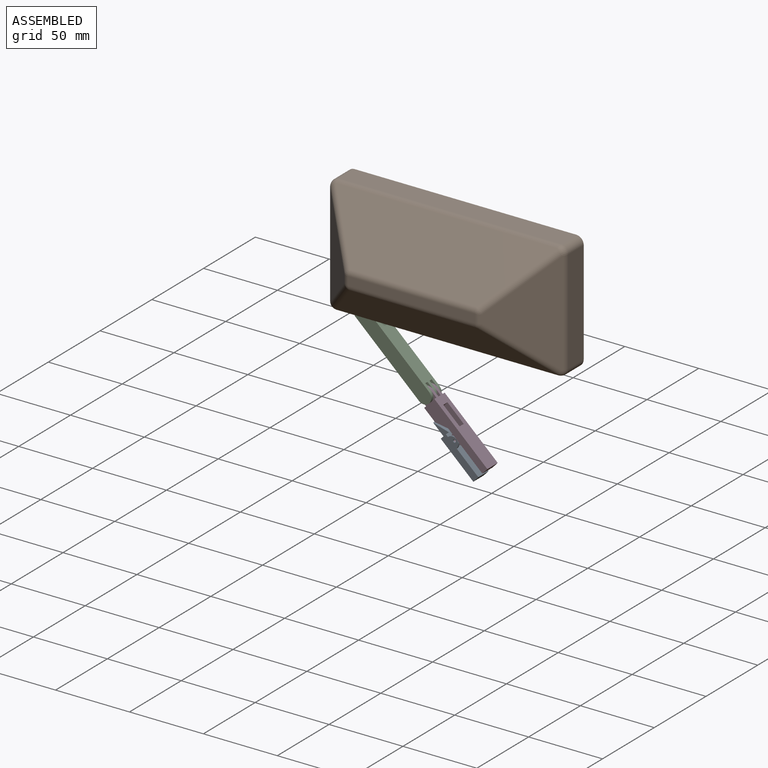
[diagram: assembled view]
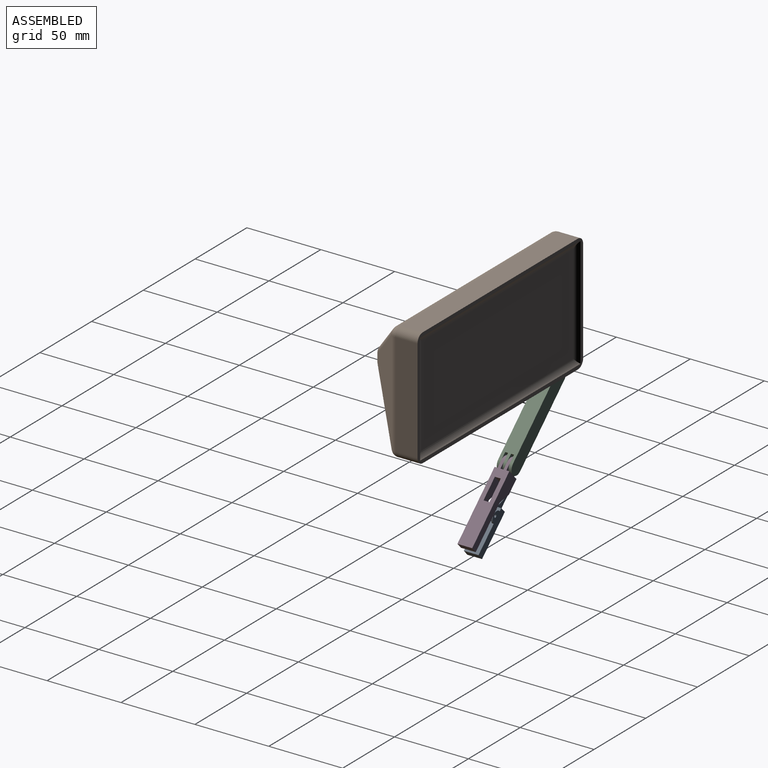
[diagram: assembled view, second angle]
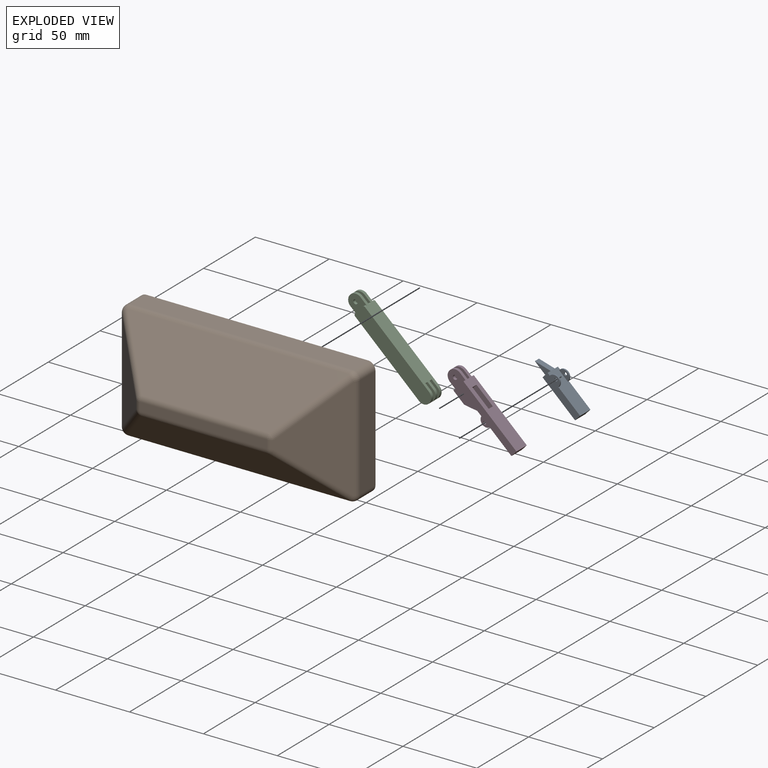
[diagram: exploded view]
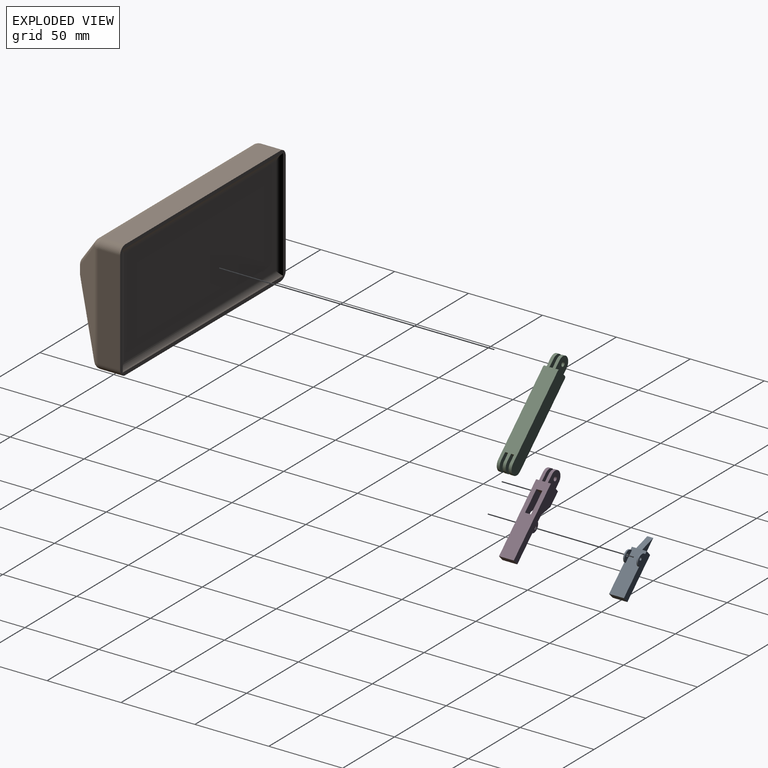
[diagram: exploded view, second angle]
ASSEMBLY  parts=4 mates=3
PART A: 16 faces, bbox 10x40x9 mm
  f0: plane 40x10mm, normal (0,0,-1), area 340mm2, adj f1,f2,f4,f5,f12,f13,f14,f15
  f1: plane 10x5mm, normal (0,0.45,0.89), area 44.7mm2, adj f0,f3,f12,f14
  f2: plane 30x9mm, normal (1,0,0), area 172mm2, adj f0,f3,f5,f9,f10,f15
  f3: plane 30x10mm, normal (0,0,1), area 284mm2, adj f1,f2,f4,f5,f6,f8,f9,f11
  f4: plane 30x9mm, normal (-1,0,0), area 172mm2, adj f0,f3,f5,f6,f7,f13
  f5: plane 10x5mm, normal (0,-1,0), area 50mm2, adj f0,f2,f3,f4
  f6: cylinder r=4mm len=8mm, axis (-1,0,0), area 12.6mm2, adj f3,f4,f8
  f7: cylinder r=1mm len=2mm, axis (-1,0,0), area 6.3mm2, adj f4,f8
  f8: plane 8x4mm, normal (1,0,0), area 22mm2, adj f3,f6,f7
  f9: cylinder r=4mm len=8mm, axis (1,0,0), area 12.6mm2, adj f2,f3,f11
  f10: cylinder r=1mm len=2mm, axis (1,0,0), area 6.3mm2, adj f2,f11
  f11: plane 8x4mm, normal (-1,0,0), area 22mm2, adj f3,f9,f10
  f12: plane 10x5mm, normal (-1,0,0), area 25mm2, adj f0,f1,f13
  f13: plane 5x3mm, normal (0,1,0), area 15mm2, adj f0,f3,f4,f12
  f14: plane 10x5mm, normal (1,0,0), area 25mm2, adj f0,f1,f15
  f15: plane 5x3mm, normal (0,1,0), area 15mm2, adj f0,f2,f3,f14
PART B: 59 faces, bbox 160x52x80 mm
  f0: plane 10x6mm, normal (0,-1,0), area 15.4mm2, adj f1,f6,f44,f53,f56
  f1: plane 146x10mm, normal (0,0,-1), area 1400mm2, adj f0,f2,f42,f43,f44,f45,f46,f47
  f2: plane 10x6mm, normal (0,1,0), area 15.4mm2, adj f1,f6,f44,f47,f58
  f3: plane 70x14.93mm, normal (1,0,0), area 1045mm2, adj f8,f14,f15,f38
  f4: plane 150x14.93mm, normal (0,0,1), area 2239.3mm2, adj f8,f15,f16,f41
  f5: plane 70x14.93mm, normal (-1,0,0), area 1045mm2, adj f8,f16,f17,f37
  f6: plane 150x14.93mm, normal (0,0,-1), area 779.3mm2, adj f0,f2,f8,f14,f17,f34,f42,f43
  f7: plane 85.86x5.86mm, normal (0,-1,0), area 502.9mm2, adj f25,f26,f30,f31
  f8: plane 160x80mm, normal (0,1,0), area 1153.5mm2, adj f3,f4,f5,f6,f14,f15,f16,f17
  f9: plane 70x32.07mm, normal (0.71,-0.71,0), area 1720.3mm2, adj f22,f26,f27,f38
  f10: plane 150x32.07mm, normal (0,-0.71,-0.71), area 5348.7mm2, adj f27,f31,f33,f34
  f11: plane 150x32.07mm, normal (0,-0.71,0.71), area 5348.7mm2, adj f22,f24,f25,f41
  f12: plane 70x32.07mm, normal (-0.71,-0.71,0), area 1720.3mm2, adj f24,f30,f33,f37
  f13: plane 147x67mm, normal (0,1,0), area 9849mm2, adj f18,f19,f20,f21
  f14: cylinder r=5mm len=14.93mm, axis (0,-1,0), area 117.3mm2, adj f3,f6,f8,f36
  f15: cylinder r=5mm len=14.93mm, axis (0,1,0), area 117.3mm2, adj f3,f4,f8,f40
  f16: cylinder r=5mm len=14.93mm, axis (0,-1,0), area 117.3mm2, adj f4,f5,f8,f39
  f17: cylinder r=5mm len=14.93mm, axis (0,1,0), area 117.3mm2, adj f5,f6,f8,f35
  f18: cylinder r=5mm len=155mm, axis (1,0,0), area 701.6mm2, adj f8,f13,f19,f20
  f19: cylinder r=5mm len=75mm, axis (0,0,1), area 330.6mm2, adj f8,f13,f18,f21
  f20: cylinder r=5mm len=75mm, axis (0,0,1), area 330.6mm2, adj f8,f13,f18,f21
  f21: cylinder r=5mm len=155mm, axis (1,0,0), area 701.6mm2, adj f8,f13,f19,f20
  f22: cylinder r=5mm len=35.61mm, axis (0.58,0.58,0.58), area 290.9mm2, adj f9,f11,f23,f40
  f23: sphere r=5mm, area 8.5mm2, adj f22,f25,f26
  f24: cylinder r=5mm len=35.61mm, axis (0.58,-0.58,-0.58), area 290.9mm2, adj f11,f12,f28,f39
  f25: cylinder r=5mm len=85.86mm, axis (-1,0,0), area 337.2mm2, adj f7,f11,f23,f28
  f26: cylinder r=5mm len=5.86mm, axis (0,0,1), area 23mm2, adj f7,f9,f23,f29
  f27: cylinder r=5mm len=35.61mm, axis (0.58,0.58,-0.58), area 290.9mm2, adj f9,f10,f29,f36
  f28: sphere r=5mm, area 8.5mm2, adj f24,f25,f30
  f29: sphere r=5mm, area 8.5mm2, adj f26,f27,f31
  f30: cylinder r=5mm len=5.86mm, axis (0,0,1), area 23mm2, adj f7,f12,f28,f32
  f31: cylinder r=5mm len=85.86mm, axis (-1,0,0), area 337.2mm2, adj f7,f10,f29,f32
  f32: sphere r=5mm, area 8.5mm2, adj f30,f31,f33
  f33: cylinder r=5mm len=35.61mm, axis (0.58,-0.58,0.58), area 290.9mm2, adj f10,f12,f32,f35
  f34: cylinder r=5mm len=150mm, axis (1,0,0), area 589mm2, adj f6,f10,f35,f36
  f35: sphere r=5mm, area 30.8mm2, adj f17,f33,f34,f37
  f36: sphere r=5mm, area 30.8mm2, adj f14,f27,f34,f38
  f37: cylinder r=5mm len=70mm, axis (0,0,-1), area 274.9mm2, adj f5,f12,f35,f39
  f38: cylinder r=5mm len=70mm, axis (0,0,1), area 274.9mm2, adj f3,f9,f36,f40
  f39: sphere r=5mm, area 30.8mm2, adj f16,f24,f37,f41
  f40: sphere r=5mm, area 30.8mm2, adj f15,f22,f38,f41
  f41: cylinder r=5mm len=150mm, axis (-1,0,0), area 589mm2, adj f4,f11,f39,f40
  f42: plane 10x10mm, normal (-1,0,0), area 100mm2, adj f1,f6,f43,f45
  f43: plane 140x10mm, normal (0,1,0), area 1355.4mm2, adj f1,f6,f42,f46,f58
  f44: plane 10x10mm, normal (1,0,0), area 100mm2, adj f0,f1,f2,f6
  f45: plane 140x10mm, normal (0,-1,0), area 1355.4mm2, adj f1,f6,f42,f54,f56
  f46: plane 5x2mm, normal (1,0,0), area 10mm2, adj f1,f43,f48,f58
  f47: plane 5x2mm, normal (-1,0,0), area 10mm2, adj f1,f2,f48,f58
  f48: plane 10x10mm, normal (0,1,0), area 89.3mm2, adj f1,f46,f47,f58
  f49: plane 10x10mm, normal (0,-1,0), area 89.3mm2, adj f1,f50,f52,f57
  f50: plane 5x2mm, normal (-1,0,0), area 10mm2, adj f1,f49,f51,f57
  f51: plane 10x10mm, normal (0,1,0), area 89.3mm2, adj f1,f50,f52,f57
  f52: plane 5x2mm, normal (1,0,0), area 10mm2, adj f1,f49,f51,f57
  f53: plane 5x2mm, normal (-1,0,0), area 10mm2, adj f0,f1,f55,f56
  f54: plane 5x2mm, normal (1,0,0), area 10mm2, adj f1,f45,f55,f56
  f55: plane 10x10mm, normal (0,-1,0), area 89.3mm2, adj f1,f53,f54,f56
  f56: cylinder r=5mm len=10mm, axis (0,1,0), area 31.4mm2, adj f0,f45,f53,f54,f55
  f57: cylinder r=5mm len=10mm, axis (0,1,0), area 31.4mm2, adj f49,f50,f51,f52
  f58: cylinder r=5mm len=10mm, axis (0,1,0), area 31.4mm2, adj f2,f43,f46,f47,f48
PART C: 30 faces, bbox 10x10x75 mm
  f0: plane 10x2mm, normal (0,0,-1), area 20mm2, adj f4,f5,f16,f18
  f1: plane 10x2mm, normal (0,0,-1), area 20mm2, adj f4,f5,f15,f17
  f2: plane 65x10mm, normal (0,-1,0), area 638.8mm2, adj f4,f5,f12,f21,f24,f27
  f3: plane 65x10mm, normal (0,1,0), area 638.8mm2, adj f4,f5,f10,f19,f26,f29
  f4: plane 65x10mm, normal (1,0,0), area 594mm2, adj f0,f1,f2,f3,f6,f7,f9,f11
  f5: plane 65x10mm, normal (-1,0,0), area 593.4mm2, adj f0,f1,f2,f3,f6,f7,f9,f11
  f6: plane 11.1x10mm, normal (0,1,0), area 82.7mm2, adj f4,f5,f8,f14,f22,f25,f28
  f7: plane 11.1x10mm, normal (0,-1,0), area 82.7mm2, adj f4,f5,f8,f13,f23,f25,f28
  f8: plane 7.9x2mm, normal (0,0,1), area 15.8mm2, adj f6,f7,f25,f28
  f9: plane 11.1x10mm, normal (0,1,0), area 82.7mm2, adj f4,f5,f10,f13,f23,f26,f29
  f10: plane 7.9x2mm, normal (0,0,1), area 15.8mm2, adj f3,f9,f26,f29
  f11: plane 11.1x10mm, normal (0,-1,0), area 82.7mm2, adj f4,f5,f12,f14,f22,f24,f27
  f12: plane 7.9x2mm, normal (0,0,1), area 15.8mm2, adj f2,f11,f24,f27
  f13: cylinder r=5mm len=10mm, axis (0,-1,0), area 31.4mm2, adj f4,f5,f7,f9
  f14: cylinder r=5mm len=10mm, axis (0,-1,0), area 31.4mm2, adj f4,f5,f6,f11
  f15: plane 10x10mm, normal (0,1,0), area 89.3mm2, adj f1,f4,f5,f21
  f16: plane 10x10mm, normal (0,1,0), area 89.3mm2, adj f0,f4,f5,f20
  f17: plane 10x10mm, normal (0,-1,0), area 89.3mm2, adj f1,f4,f5,f20
  f18: plane 10x10mm, normal (0,-1,0), area 89.3mm2, adj f0,f4,f5,f19
  f19: cylinder r=5mm len=10mm, axis (0,-1,0), area 31.4mm2, adj f3,f4,f5,f18
  f20: cylinder r=5mm len=10mm, axis (0,-1,0), area 31.4mm2, adj f4,f5,f16,f17
  f21: cylinder r=5mm len=10mm, axis (0,-1,0), area 31.4mm2, adj f2,f4,f5,f15
  f22: cylinder r=1.5mm len=3mm, axis (0,1,0), area 18.8mm2, adj f6,f11
  f23: cylinder r=1.5mm len=3mm, axis (0,1,0), area 18.8mm2, adj f7,f9
  f24: cylinder r=1.1mm len=2mm, axis (0,1,0), area 3.5mm2, adj f2,f5,f11,f12
  f25: cylinder r=1.1mm len=2mm, axis (0,1,0), area 3.5mm2, adj f5,f6,f7,f8
  f26: cylinder r=1.1mm len=2mm, axis (0,1,0), area 3.5mm2, adj f3,f5,f9,f10
  f27: cylinder r=1mm len=2mm, axis (0,-1,0), area 3.1mm2, adj f2,f4,f11,f12
  f28: cylinder r=1mm len=2mm, axis (0,-1,0), area 3.1mm2, adj f4,f6,f7,f8
  f29: cylinder r=1mm len=2mm, axis (0,-1,0), area 3.1mm2, adj f3,f4,f9,f10
PART D: 27 faces, bbox 10x59x10 mm
  f0: plane 15x10mm, normal (1,0,0), area 101.8mm2, adj f3,f4,f6,f7,f8,f9,f10,f11
  f1: plane 54x10mm, normal (-1,0,0), area 450mm2, adj f4,f6,f7,f8,f9,f10,f11,f12
  f2: plane 31.5x10mm, normal (1,0,0), area 239.2mm2, adj f3,f4,f8,f18,f19,f20,f21,f22
  f3: plane 7.5x5mm, normal (0.83,0.55,0), area 27mm2, adj f0,f2,f8,f24
  f4: plane 49x10mm, normal (0,0,-1), area 313.8mm2, adj f0,f1,f2,f9,f18,f22
  f5: cylinder r=1mm len=8mm, axis (0,0,-1), area 50.3mm2, adj f20,f21
  f6: plane 10x2mm, normal (0,-1,0), area 20mm2, adj f0,f1,f10,f13
  f7: plane 10x2mm, normal (0,-1,0), area 20mm2, adj f0,f1,f8,f11
  f8: plane 49x10mm, normal (0,0,1), area 313.8mm2, adj f0,f1,f2,f3,f7,f22
  f9: plane 10x2mm, normal (0,-1,0), area 20mm2, adj f0,f1,f4,f12
  f10: plane 10x10mm, normal (0,0,-1), area 82.2mm2, adj f0,f1,f6,f15,f17
  f11: plane 10x10mm, normal (0,0,1), area 82.2mm2, adj f0,f1,f7,f15,f17
  f12: plane 10x10mm, normal (0,0,-1), area 82.2mm2, adj f0,f1,f9,f14,f16
  f13: plane 10x10mm, normal (0,0,1), area 82.2mm2, adj f0,f1,f6,f14,f16
  f14: cylinder r=5mm len=10mm, axis (0,0,1), area 31.4mm2, adj f0,f1,f12,f13
  f15: cylinder r=5mm len=10mm, axis (0,0,1), area 31.4mm2, adj f0,f1,f10,f11
  f16: cylinder r=1.5mm len=3mm, axis (0,0,-1), area 18.8mm2, adj f12,f13
  f17: cylinder r=1.5mm len=3mm, axis (0,0,-1), area 18.8mm2, adj f10,f11
  f18: plane 7.5x5mm, normal (0.83,0.55,0), area 27mm2, adj f0,f2,f4,f25
  f19: cylinder r=4mm len=8mm, axis (0,0,-1), area 100.5mm2, adj f2,f20,f21
  f20: plane 8x4mm, normal (0,0,1), area 22mm2, adj f2,f5,f19
  f21: plane 8x4mm, normal (0,0,-1), area 22mm2, adj f2,f5,f19
  f22: plane 10x5mm, normal (0,1,0), area 50mm2, adj f1,f2,f4,f8
  f23: plane 10x4mm, normal (0,1,0), area 40mm2, adj f0,f1,f24,f25
  f24: plane 15x10mm, normal (0,0,-1), area 116.4mm2, adj f0,f1,f2,f3,f23,f26
  f25: plane 15x10mm, normal (0,0,1), area 116.4mm2, adj f0,f1,f2,f18,f23,f26
  f26: plane 5x4mm, normal (0,-1,0), area 20mm2, adj f1,f2,f24,f25
PLACE A rot(axis=(0.34,0.34,0.87),97.7deg) t=(-11,5.36,-117.29)mm
PLACE B t=(-26.76,12.86,3.47)mm fixed
PLACE C rot(axis=(0,-1,0),47.1deg) t=(-73.61,10.36,-50.25)mm
PLACE D rot(axis=(0.29,0.68,-0.68),147.2deg) t=(-24.16,5.36,-96.19)mm
MATE fastened A.f10 <-> D.f5  axis (0,-1,0) through (-25.52,9.36,-97.65)mm
MATE revolute B.f56 <-> C.f13  axis (0,-1,0) through (-93.76,8.36,-31.53)mm
MATE revolute D.f16 <-> C.f19  axis (0,1,0) through (-46.14,8.36,-75.77)mm
